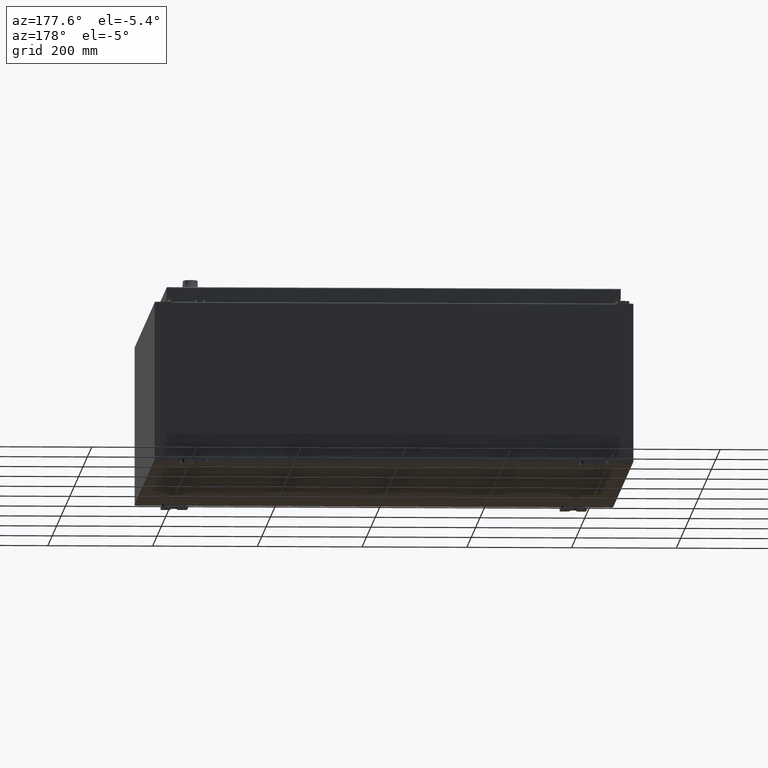
[diagram: clean part render]
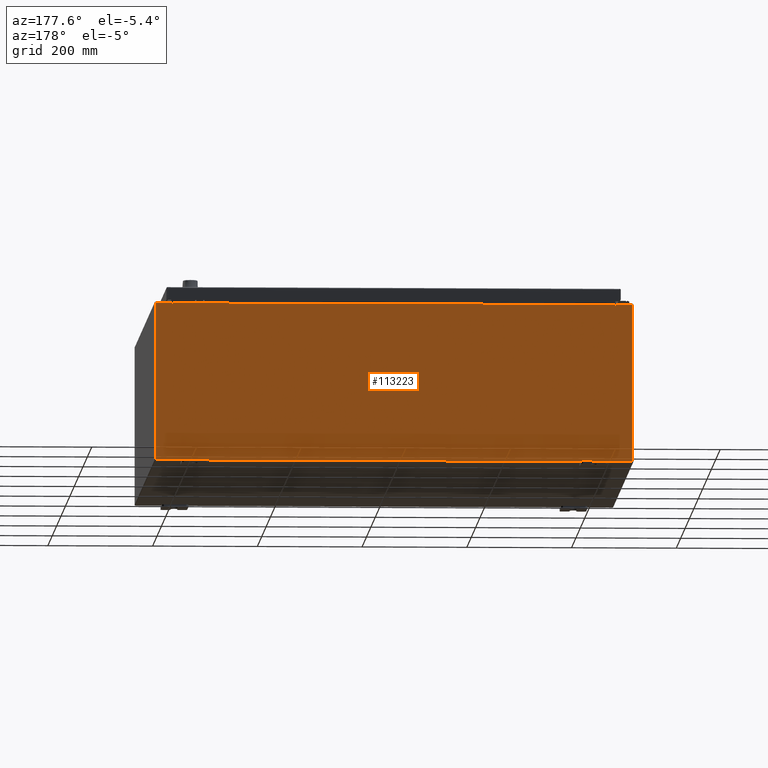
[diagram: same view with one face highlighted and labeled with its STEP entity id]
A machine part, auxiliary view. The second image highlights one B-rep face of the part: STEP entity #113223.
In plain terms, the highlighted planar face has unit normal (0, -1, 0).
Its self-contained STEP definition (entity closure, byte-faithful):
#884 = LINE ( 'NONE', #22622, #32325 ) ;
#1766 = PLANE ( 'NONE',  #45506 ) ;
#2023 = CARTESIAN_POINT ( 'NONE',  ( -16.67455000000000000, 0.0000000000000000000, 5.874949999999999200 ) ) ;
#3585 = EDGE_CURVE ( 'NONE', #8363, #76776, #72132, .T. ) ;
#8363 = VERTEX_POINT ( 'NONE', #82390 ) ;
#8483 = AXIS2_PLACEMENT_3D ( 'NONE', #100056, #42779, #109675 ) ;
#9712 = CARTESIAN_POINT ( 'NONE',  ( -16.63720000000000000, -0.0000000000000000000, 0.0000000000000000000 ) ) ;
#10130 = EDGE_CURVE ( 'NONE', #43663, #114246, #88245, .T. ) ;
#11348 = DIRECTION ( 'NONE',  ( 0.0000000000000000000, -1.000000000000000000, 0.0000000000000000000 ) ) ;
#11912 = VECTOR ( 'NONE', #67014, 39.37007874015748100 ) ;
#12566 = DIRECTION ( 'NONE',  ( -1.000000000000000000, -0.0000000000000000000, -0.0000000000000000000 ) ) ;
#16108 = AXIS2_PLACEMENT_3D ( 'NONE', #110067, #52787, #119663 ) ;
#16861 = ORIENTED_EDGE ( 'NONE', *, *, #24953, .T. ) ;
#17373 = CARTESIAN_POINT ( 'NONE',  ( 16.67454999999949500, -0.0000000000000000000, -1.447541957108302900E-012 ) ) ;
#17902 = CIRCLE ( 'NONE', #8483, 0.01867499999999949400 ) ;
#18735 = VECTOR ( 'NONE', #112792, 39.37007874015748100 ) ;
#22622 = CARTESIAN_POINT ( 'NONE',  ( -16.67455000000000000, -0.0000000000000000000, 0.0000000000000000000 ) ) ;
#22676 = CARTESIAN_POINT ( 'NONE',  ( -17.92529999999999600, 0.0000000000000000000, 5.925299999999999100 ) ) ;
#24168 = CARTESIAN_POINT ( 'NONE',  ( -16.63720000000000000, 3.756290991288361700E-016, 5.912299999999999200 ) ) ;
#24357 = EDGE_CURVE ( 'NONE', #100655, #76776, #884, .T. ) ;
#24905 = EDGE_CURVE ( 'NONE', #43663, #69074, #66638, .T. ) ;
#24953 = EDGE_CURVE ( 'NONE', #73475, #33379, #35203, .T. ) ;
#27071 = ORIENTED_EDGE ( 'NONE', *, *, #3585, .T. ) ;
#28202 = EDGE_CURVE ( 'NONE', #33379, #74431, #101486, .T. ) ;
#28227 = VECTOR ( 'NONE', #51590, 39.37007874015748100 ) ;
#28513 = CARTESIAN_POINT ( 'NONE',  ( 16.63720000000000400, 0.0000000000000000000, 5.874949999999999200 ) ) ;
#29663 = VERTEX_POINT ( 'NONE', #58390 ) ;
#31249 = LINE ( 'NONE', #22676, #28227 ) ;
#32325 = VECTOR ( 'NONE', #79966, 39.37007874015748100 ) ;
#33379 = VERTEX_POINT ( 'NONE', #113092 ) ;
#33793 = EDGE_CURVE ( 'NONE', #114246, #100655, #75537, .T. ) ;
#35203 = LINE ( 'NONE', #51266, #86079 ) ;
#39046 = EDGE_CURVE ( 'NONE', #29663, #96124, #17902, .T. ) ;
#39573 = CARTESIAN_POINT ( 'NONE',  ( -16.63720000000000000, 3.756290991288361700E-016, 5.912299999999999200 ) ) ;
#39944 = ORIENTED_EDGE ( 'NONE', *, *, #33793, .F. ) ;
#40944 = EDGE_CURVE ( 'NONE', #96124, #69074, #44088, .T. ) ;
#42779 = DIRECTION ( 'NONE',  ( -0.0000000000000000000, 1.000000000000000000, -0.0000000000000000000 ) ) ;
#42957 = EDGE_LOOP ( 'NONE', ( #121749, #39944, #89764, #116750, #99977, #123729, #50195, #88197, #16861, #61219, #117202, #27071 ) ) ;
#43663 = VERTEX_POINT ( 'NONE', #39573 ) ;
#44088 = LINE ( 'NONE', #46138, #91970 ) ;
#45506 = AXIS2_PLACEMENT_3D ( 'NONE', #59083, #11348, #78278 ) ;
#46138 = CARTESIAN_POINT ( 'NONE',  ( 16.63720000000000400, 0.0000000000000000000, 0.0000000000000000000 ) ) ;
#46214 = FACE_OUTER_BOUND ( 'NONE', #42957, .T. ) ;
#46674 = VECTOR ( 'NONE', #115385, 39.37007874015748100 ) ;
#50195 = ORIENTED_EDGE ( 'NONE', *, *, #74321, .F. ) ;
#50539 = VECTOR ( 'NONE', #60754, 39.37007874015748100 ) ;
#51100 = CARTESIAN_POINT ( 'NONE',  ( -17.92529999999999600, 0.0000000000000000000, 5.925299999999999100 ) ) ;
#51266 = CARTESIAN_POINT ( 'NONE',  ( 17.92530000000000400, 0.0000000000000000000, 5.925300000000000000 ) ) ;
#51590 = DIRECTION ( 'NONE',  ( -0.0000000000000000000, -0.0000000000000000000, 1.000000000000000000 ) ) ;
#52787 = DIRECTION ( 'NONE',  ( -0.0000000000000000000, 1.000000000000000000, -0.0000000000000000000 ) ) ;
#53533 = LINE ( 'NONE', #51100, #50539 ) ;
#58390 = CARTESIAN_POINT ( 'NONE',  ( 16.67455000000000400, 0.0000000000000000000, 5.874949999999999200 ) ) ;
#59083 = CARTESIAN_POINT ( 'NONE',  ( 0.0000000000000000000, 0.0000000000000000000, 0.0000000000000000000 ) ) ;
#60754 = DIRECTION ( 'NONE',  ( 1.000000000000000000, 0.0000000000000000000, 3.048036009064577000E-017 ) ) ;
#60915 = DIRECTION ( 'NONE',  ( 0.0000000000000000000, 0.0000000000000000000, -1.000000000000000000 ) ) ;
#61219 = ORIENTED_EDGE ( 'NONE', *, *, #28202, .T. ) ;
#66638 = LINE ( 'NONE', #24168, #18735 ) ;
#67014 = DIRECTION ( 'NONE',  ( 0.0000000000000000000, 0.0000000000000000000, -1.000000000000000000 ) ) ;
#69074 = VERTEX_POINT ( 'NONE', #89986 ) ;
#69085 = CARTESIAN_POINT ( 'NONE',  ( 17.92530000000000400, 0.0000000000000000000, 5.925300000000000000 ) ) ;
#69880 = CARTESIAN_POINT ( 'NONE',  ( -17.92529999999999600, 0.0000000000000000000, -5.925300000000000000 ) ) ;
#72132 = LINE ( 'NONE', #86579, #46674 ) ;
#73475 = VERTEX_POINT ( 'NONE', #69085 ) ;
#74321 = EDGE_CURVE ( 'NONE', #77718, #29663, #97335, .T. ) ;
#74431 = VERTEX_POINT ( 'NONE', #85157 ) ;
#75537 = CIRCLE ( 'NONE', #16108, 0.01867499999999949400 ) ;
#76104 = VECTOR ( 'NONE', #12566, 39.37007874015748100 ) ;
#76776 = VERTEX_POINT ( 'NONE', #115257 ) ;
#77718 = VERTEX_POINT ( 'NONE', #82777 ) ;
#78278 = DIRECTION ( 'NONE',  ( 0.0000000000000000000, -0.0000000000000000000, -1.000000000000000000 ) ) ;
#79966 = DIRECTION ( 'NONE',  ( 0.0000000000000000000, 0.0000000000000000000, 1.000000000000000000 ) ) ;
#82390 = CARTESIAN_POINT ( 'NONE',  ( -17.92529999999999600, 0.0000000000000000000, 5.925299999999999100 ) ) ;
#82777 = CARTESIAN_POINT ( 'NONE',  ( 16.67455000000000700, 0.0000000000000000000, 5.925300000000000000 ) ) ;
#84328 = DIRECTION ( 'NONE',  ( -8.681145560799821800E-014, 0.0000000000000000000, -1.000000000000000000 ) ) ;
#85157 = CARTESIAN_POINT ( 'NONE',  ( -17.92529999999999600, 0.0000000000000000000, -5.925300000000000000 ) ) ;
#86079 = VECTOR ( 'NONE', #60915, 39.37007874015748100 ) ;
#86579 = CARTESIAN_POINT ( 'NONE',  ( -17.92529999999999600, 0.0000000000000000000, 5.925299999999999100 ) ) ;
#88197 = ORIENTED_EDGE ( 'NONE', *, *, #114475, .T. ) ;
#88245 = LINE ( 'NONE', #9712, #11912 ) ;
#89673 = EDGE_CURVE ( 'NONE', #74431, #8363, #31249, .T. ) ;
#89764 = ORIENTED_EDGE ( 'NONE', *, *, #10130, .F. ) ;
#89986 = CARTESIAN_POINT ( 'NONE',  ( 16.63720000000000400, 0.0000000000000000000, 5.912299999999999200 ) ) ;
#91970 = VECTOR ( 'NONE', #122244, 39.37007874015748100 ) ;
#95853 = CARTESIAN_POINT ( 'NONE',  ( -16.63720000000000000, -0.0000000000000000000, 5.874949999999999200 ) ) ;
#96124 = VERTEX_POINT ( 'NONE', #28513 ) ;
#97335 = LINE ( 'NONE', #17373, #119760 ) ;
#99977 = ORIENTED_EDGE ( 'NONE', *, *, #40944, .F. ) ;
#100056 = CARTESIAN_POINT ( 'NONE',  ( 16.65587500000000500, 0.0000000000000000000, 5.874949999999999200 ) ) ;
#100655 = VERTEX_POINT ( 'NONE', #2023 ) ;
#101486 = LINE ( 'NONE', #69880, #76104 ) ;
#109675 = DIRECTION ( 'NONE',  ( 0.0000000000000000000, 0.0000000000000000000, -1.000000000000000000 ) ) ;
#110067 = CARTESIAN_POINT ( 'NONE',  ( -16.65587499999999800, 0.0000000000000000000, 5.874949999999999200 ) ) ;
#112792 = DIRECTION ( 'NONE',  ( 1.000000000000000000, 0.0000000000000000000, 0.0000000000000000000 ) ) ;
#113092 = CARTESIAN_POINT ( 'NONE',  ( 17.92530000000000400, 0.0000000000000000000, -5.925300000000000000 ) ) ;
#113223 = ADVANCED_FACE ( 'NONE', ( #46214 ), #1766, .F. ) ;
#114246 = VERTEX_POINT ( 'NONE', #95853 ) ;
#114475 = EDGE_CURVE ( 'NONE', #77718, #73475, #53533, .T. ) ;
#115257 = CARTESIAN_POINT ( 'NONE',  ( -16.67455000000000000, 0.0000000000000000000, 5.925299999999999100 ) ) ;
#115385 = DIRECTION ( 'NONE',  ( 1.000000000000000000, 0.0000000000000000000, 3.048036009064577000E-017 ) ) ;
#116750 = ORIENTED_EDGE ( 'NONE', *, *, #24905, .T. ) ;
#117202 = ORIENTED_EDGE ( 'NONE', *, *, #89673, .T. ) ;
#119663 = DIRECTION ( 'NONE',  ( 0.0000000000000000000, 0.0000000000000000000, -1.000000000000000000 ) ) ;
#119760 = VECTOR ( 'NONE', #84328, 39.37007874015748100 ) ;
#121749 = ORIENTED_EDGE ( 'NONE', *, *, #24357, .F. ) ;
#122244 = DIRECTION ( 'NONE',  ( 0.0000000000000000000, 0.0000000000000000000, 1.000000000000000000 ) ) ;
#123729 = ORIENTED_EDGE ( 'NONE', *, *, #39046, .F. ) ;